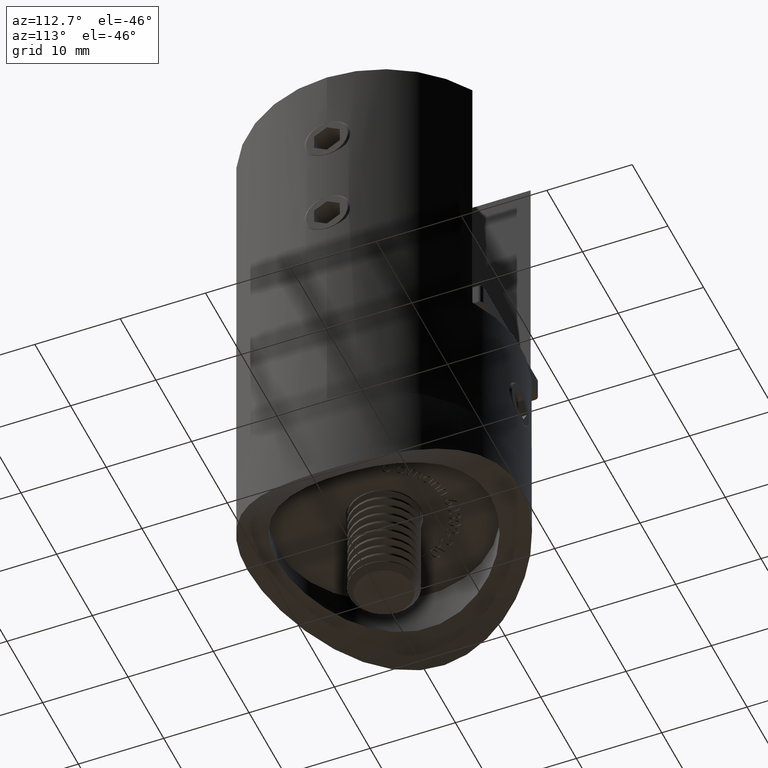
[diagram: clean part render]
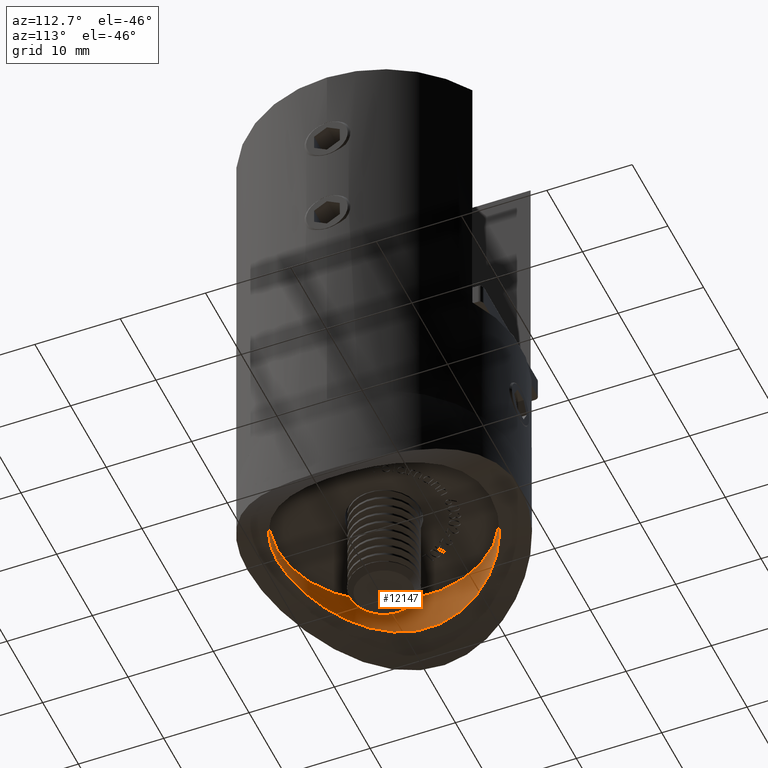
[diagram: same view with one face highlighted and labeled with its STEP entity id]
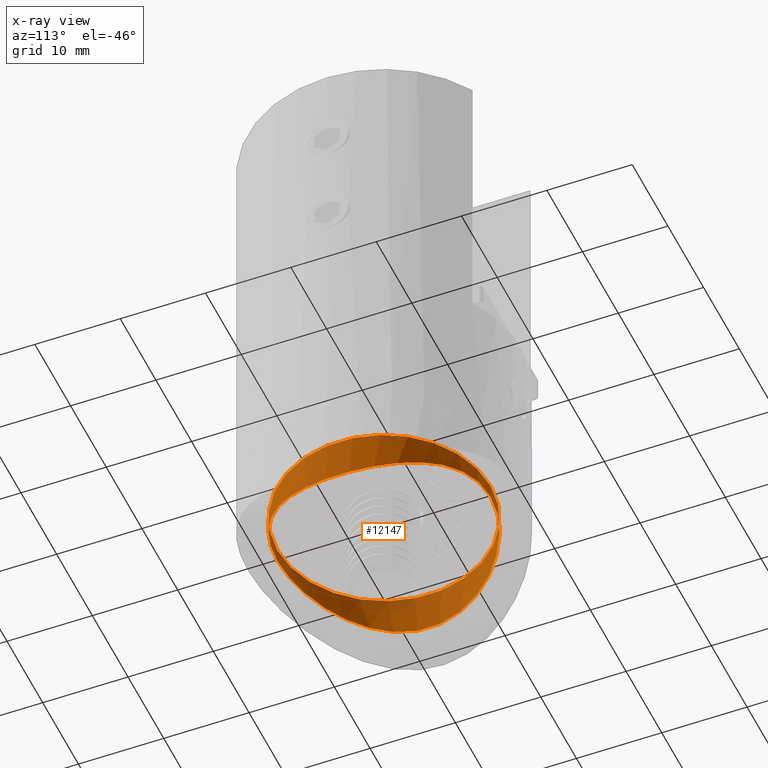
[diagram: x-ray of the same camera — body ghosted, the highlighted face saturated]
A machine part, auxiliary view. The second image highlights one B-rep face of the part: STEP entity #12147.
The next image is the same camera in x-ray: the body ghosted, the highlighted face saturated — about 6% of this face is hidden behind the body in this view.
In plain terms, the highlighted cylindrical surface (bore or boss wall) has radius 12.5 mm, axis along (0, -0, -1).
Its self-contained STEP definition (entity closure, byte-faithful):
#551 = CARTESIAN_POINT ( 'NONE',  ( 11.22171516179564854, -2.762517631140664509, 5.567231885764328148 ) ) ;
#626 = CARTESIAN_POINT ( 'NONE',  ( 0.8416139926660898274, 3.469446951953590917E-15, -12.50000000000000711 ) ) ;
#698 = CARTESIAN_POINT ( 'NONE',  ( 11.67831068887509183, -3.010663022005199974, -4.475638660923369372 ) ) ;
#758 = CARTESIAN_POINT ( 'NONE',  ( 4.109752741455194425, -0.3489297180019296785, 11.81226899662650176 ) ) ;
#822 = CARTESIAN_POINT ( 'NONE',  ( 1.693364542386448068, -0.04548548441427882616, 12.41272702035197284 ) ) ;
#890 = CARTESIAN_POINT ( 'NONE',  ( -12.40093975770249202, -3.427031647108957468, -1.625193573246781709 ) ) ;
#2133 = CARTESIAN_POINT ( 'NONE',  ( 11.83531592272858290, -3.098469632034195786, 4.042869024516788201 ) ) ;
#2199 = CARTESIAN_POINT ( 'NONE',  ( -1.630651670391556118, -0.05147306847736196622, 12.40031129654895992 ) ) ;
#2269 = CARTESIAN_POINT ( 'NONE',  ( 9.923142205795825177, -2.131111030546360308, 7.612074174934297055 ) ) ;
#2333 = CARTESIAN_POINT ( 'NONE',  ( 5.594287980704874208, -0.6442781208208000487, -11.20816533570559592 ) ) ;
#2399 = CARTESIAN_POINT ( 'NONE',  ( 7.643601615584866948, -1.239174722017980956, -9.898850495652817827 ) ) ;
#2464 = CARTESIAN_POINT ( 'NONE',  ( -10.16369364889731308, -2.241477199381396446, -7.287758421890135452 ) ) ;
#2594 = CARTESIAN_POINT ( 'NONE',  ( -5.226925829154971836, -0.5693079560569049846, -11.36202694756623721 ) ) ;
#2662 = CARTESIAN_POINT ( 'NONE',  ( -2.094311208364756371, -0.08749313957578185030, -12.33032299215525818 ) ) ;
#3522 = VERTEX_POINT ( 'NONE', #15229 ) ;
#3729 = CARTESIAN_POINT ( 'NONE',  ( 8.296859981971229203, -1.461839374236833189, 9.383618653070680438 ) ) ;
#3795 = CARTESIAN_POINT ( 'NONE',  ( -6.290458467577763280, -0.8231097910722736666, 10.83203505537224665 ) ) ;
#3868 = CARTESIAN_POINT ( 'NONE',  ( -0.3758445865019243159, 0.0006470260009834786878, 12.50125005891698926 ) ) ;
#3934 = CARTESIAN_POINT ( 'NONE',  ( 9.412192866964707250, -1.907903693207506635, 8.235475087461974653 ) ) ;
#3964 = CARTESIAN_POINT ( 'NONE',  ( 0.000000000000000000, 3.469446951953614189E-15, -12.50000000000000000 ) ) ;
#4001 = CARTESIAN_POINT ( 'NONE',  ( 3.280682860040506466, -0.2205064101225591155, -12.06894086756878792 ) ) ;
#4192 = CARTESIAN_POINT ( 'NONE',  ( -0.4208069963330455243, 3.476223215531643070E-15, -12.50000000000000355 ) ) ;
#4812 = ORIENTED_EDGE ( 'NONE', *, *, #10471, .F. ) ;
#5228 = CARTESIAN_POINT ( 'NONE',  ( 9.394847521644635435, -1.900573235167552610, -8.255202184159772472 ) ) ;
#5301 = CARTESIAN_POINT ( 'NONE',  ( 0.8701867918572792071, -0.001390958110063332878, 12.49731265922301660 ) ) ;
#5368 = CARTESIAN_POINT ( 'NONE',  ( -9.909193422454757538, -2.120910015980589147, 7.662299098335453529 ) ) ;
#5439 = CARTESIAN_POINT ( 'NONE',  ( 9.125846458580159748, -1.788567383216229878, -8.551539796307121577 ) ) ;
#5500 = CARTESIAN_POINT ( 'NONE',  ( 10.14872829841706015, -2.234525669153278660, -7.308644647692618790 ) ) ;
#5518 = EDGE_LOOP ( 'NONE', ( #4812 ) ) ;
#5692 = CARTESIAN_POINT ( 'NONE',  ( -9.411987761562494725, -1.907810120690277333, -8.235748521031599267 ) ) ;
#5729 = VERTEX_POINT ( 'NONE', #3964 ) ;
#5762 = CARTESIAN_POINT ( 'NONE',  ( -12.07716066025249901, -3.235827473606688987, 3.330140473100307918 ) ) ;
#6797 = CARTESIAN_POINT ( 'NONE',  ( -2.042669042519714040, -0.08308288046927303494, 12.33891662597603656 ) ) ;
#6864 = CARTESIAN_POINT ( 'NONE',  ( 11.20659804588976982, -2.754610452288815292, -5.596363829670498724 ) ) ;
#6935 = CARTESIAN_POINT ( 'NONE',  ( -10.79939258952036774, -2.548087003692995900, 6.307741837057448286 ) ) ;
#7009 = CARTESIAN_POINT ( 'NONE',  ( 12.49774924526884412, -3.485325542013122391, -0.8654298213824856978 ) ) ;
#7065 = AXIS2_PLACEMENT_3D ( 'NONE', #16943, #12257, #7655 ) ;
#7079 = CARTESIAN_POINT ( 'NONE',  ( 4.463086516404185744, -0.4128668850851535677, -11.68324080886737981 ) ) ;
#7207 = CARTESIAN_POINT ( 'NONE',  ( -0.8415633137906058936, -0.01104361446218677344, -12.47870299761530077 ) ) ;
#7274 = CARTESIAN_POINT ( 'NONE',  ( -6.316747293375139627, -0.8377765374019664479, -10.79430669075418692 ) ) ;
#7338 = CARTESIAN_POINT ( 'NONE',  ( -12.47702995727797948, -3.472750038800189731, 0.8636410543319921196 ) ) ;
#7404 = CARTESIAN_POINT ( 'NONE',  ( -11.20397708090773037, -2.755140858187857589, -5.557493264728312177 ) ) ;
#7655 = DIRECTION ( 'NONE',  ( 0.000000000000000000, 0.000000000000000000, -1.000000000000000000 ) ) ;
#7944 = CYLINDRICAL_SURFACE ( 'NONE', #15012, 12.50000000000000000 ) ;
#8317 = ORIENTED_EDGE ( 'NONE', *, *, #16419, .T. ) ;
#8375 = CARTESIAN_POINT ( 'NONE',  ( 12.06284593198464350, -3.228001797514791882, -3.302785208884873924 ) ) ;
#8441 = CARTESIAN_POINT ( 'NONE',  ( 3.322960808794985788, -0.2263935488872669266, 12.05726743121238265 ) ) ;
#8515 = CARTESIAN_POINT ( 'NONE',  ( 12.33814508041329283, -3.389424442378365487, 2.047052564725856172 ) ) ;
#8578 = CARTESIAN_POINT ( 'NONE',  ( 7.317373504727922473, -1.132564767861668154, -10.14252889460935947 ) ) ;
#8642 = CARTESIAN_POINT ( 'NONE',  ( 12.17629244726874838, -3.294084202614605772, 2.856247619983864006 ) ) ;
#8709 = CARTESIAN_POINT ( 'NONE',  ( -4.099037510848110522, -0.3380375637845913217, -11.83695617156265101 ) ) ;
#8774 = CARTESIAN_POINT ( 'NONE',  ( -11.36069409278679032, -2.838285258480942375, 5.229597903835168538 ) ) ;
#8971 = CARTESIAN_POINT ( 'NONE',  ( -3.316877259944524869, -0.2148307166161520787, -12.08057711187186278 ) ) ;
#9937 = CARTESIAN_POINT ( 'NONE',  ( 11.69463221032095568, -3.019683490822727912, 4.433206286189491863 ) ) ;
#10013 = CARTESIAN_POINT ( 'NONE',  ( 2.916893301379980930, -0.1732949648051450575, 12.16203323285878213 ) ) ;
#10081 = CARTESIAN_POINT ( 'NONE',  ( 1.666427008392846520, -0.04383638825327753480, -12.41589289394554996 ) ) ;
#10106 = DIRECTION ( 'NONE',  ( -0.000000000000000000, -1.000000000000000000, -0.000000000000000000 ) ) ;
#10147 = CARTESIAN_POINT ( 'NONE',  ( 12.41328738822395827, -3.433597884895211116, -1.685670540479240698 ) ) ;
#10218 = CARTESIAN_POINT ( 'NONE',  ( 12.50105946675680713, -3.487328007451254042, 0.3829992845280518754 ) ) ;
#10284 = CARTESIAN_POINT ( 'NONE',  ( -10.81973109692051871, -2.558276606120126750, -6.272818569617435003 ) ) ;
#10308 = CARTESIAN_POINT ( 'NONE',  ( 0.000000000000000000, 1.699999999999999956, 0.000000000000000000 ) ) ;
#10471 = EDGE_CURVE ( 'NONE', #3522, #3522, #16156, .T. ) ;
#10488 = CARTESIAN_POINT ( 'NONE',  ( -11.85457163419845017, -3.106690732645334130, -4.048891219634814576 ) ) ;
#11545 = CARTESIAN_POINT ( 'NONE',  ( 9.905737200678290222, -2.123277097359831167, -7.634650847773378324 ) ) ;
#11616 = CARTESIAN_POINT ( 'NONE',  ( 10.82438516625331992, -2.555926955366531139, -6.303536818163585131 ) ) ;
#11692 = CARTESIAN_POINT ( 'NONE',  ( 8.560607551957421180, -1.566139820617232781, -9.117340885081242519 ) ) ;
#11761 = CARTESIAN_POINT ( 'NONE',  ( -7.632636067880911312, -1.227161144243663626, 9.932055065716143716 ) ) ;
#11830 = CARTESIAN_POINT ( 'NONE',  ( -0.7937935283653483332, -0.009413491511894042305, 12.48185230467802320 ) ) ;
#11894 = CARTESIAN_POINT ( 'NONE',  ( -11.38086847299331694, -2.849046002857148707, -5.185983993912951284 ) ) ;
#11961 = CARTESIAN_POINT ( 'NONE',  ( -6.665751520387543039, -0.9355089565335658053, -10.58210857748916034 ) ) ;
#12017 = CARTESIAN_POINT ( 'NONE',  ( -7.670003217709719934, -1.239676964406403403, -9.903237437807737464 ) ) ;
#12087 = CARTESIAN_POINT ( 'NONE',  ( -12.39229586063314947, -3.421856189825289274, 1.689128689021146101 ) ) ;
#12147 = ADVANCED_FACE ( 'NONE', ( #16820, #12375 ), #7944, .F. ) ;
#12155 = CARTESIAN_POINT ( 'NONE',  ( -12.50113647660907823, -3.487374592744736823, -0.3784457863118969589 ) ) ;
#12257 = DIRECTION ( 'NONE',  ( 0.000000000000000000, -1.000000000000000000, 0.000000000000000000 ) ) ;
#12375 = FACE_OUTER_BOUND ( 'NONE', #5518, .T. ) ;
#13139 = CARTESIAN_POINT ( 'NONE',  ( 10.16551749499001644, -2.242316943920116490, 7.285275361540620942 ) ) ;
#13215 = CARTESIAN_POINT ( 'NONE',  ( -5.575696691962559015, -0.6395565428234447625, 11.21809945721803992 ) ) ;
#13283 = CARTESIAN_POINT ( 'NONE',  ( 9.143358402556374998, -1.795727440652015616, 8.532821530365831464 ) ) ;
#13351 = CARTESIAN_POINT ( 'NONE',  ( 11.81847010116291941, -3.088992777373849030, -4.091992984200407690 ) ) ;
#13423 = CARTESIAN_POINT ( 'NONE',  ( 8.264370655871712046, -1.455711329976477675, -9.386802674788901513 ) ) ;
#13492 = CARTESIAN_POINT ( 'NONE',  ( -5.595272729540670120, -0.6541709611997966745, -11.18531521167290421 ) ) ;
#13558 = CARTESIAN_POINT ( 'NONE',  ( -12.33897836552499960, -3.389917376965435380, -2.042544866178391150 ) ) ;
#13623 = CARTESIAN_POINT ( 'NONE',  ( -1.676951933329628108, -0.05466276626705903613, -12.39411511674446054 ) ) ;
#13650 = DIRECTION ( 'NONE',  ( 0.000000000000000000, 0.000000000000000000, -1.000000000000000000 ) ) ;
#13760 = CARTESIAN_POINT ( 'NONE',  ( -11.83278988928865871, -3.094459033048017726, 4.109907718995613912 ) ) ;
#14741 = CARTESIAN_POINT ( 'NONE',  ( 5.616393516081360282, -0.6497255878473398027, 11.19673421751229547 ) ) ;
#14808 = CARTESIAN_POINT ( 'NONE',  ( -9.399704287991005103, -1.896005990789425777, 8.278850895681342692 ) ) ;
#14874 = CARTESIAN_POINT ( 'NONE',  ( -8.264077568507033789, -1.449786080185160531, 9.412695405477592203 ) ) ;
#14946 = CARTESIAN_POINT ( 'NONE',  ( -3.260479979501046621, -0.2071982398510623935, 12.09564845651103049 ) ) ;
#15012 = AXIS2_PLACEMENT_3D ( 'NONE', #10308, #10106, #13650 ) ;
#15229 = CARTESIAN_POINT ( 'NONE',  ( 0.000000000000000000, 1.699999999999999956, -12.50000000000000000 ) ) ;
#16156 = CIRCLE ( 'NONE', #7065, 12.50000000000000000 ) ;
#16246 = CARTESIAN_POINT ( 'NONE',  ( 10.83888041841365180, -2.563234087021752927, 6.278582914400732129 ) ) ;
#16313 = CARTESIAN_POINT ( 'NONE',  ( -4.048937038016205747, -0.3290962804506795125, 11.85496764630669020 ) ) ;
#16385 = CARTESIAN_POINT ( 'NONE',  ( -10.58722758480828396, -2.442956972001324001, 6.657615752389726360 ) ) ;
#16419 = EDGE_CURVE ( 'NONE', #5729, #5729, #17382, .T. ) ;
#16450 = CARTESIAN_POINT ( 'NONE',  ( 4.073928212782695901, -0.3427185001470134940, -11.82477579534296197 ) ) ;
#16518 = CARTESIAN_POINT ( 'NONE',  ( 12.39939560149940156, -3.426106614345843404, 1.636956017459154866 ) ) ;
#16647 = CARTESIAN_POINT ( 'NONE',  ( -8.287351939170422455, -1.458261868603524691, -9.392409702269290506 ) ) ;
#16709 = CARTESIAN_POINT ( 'NONE',  ( -12.09488317661415557, -3.246125444680883376, -3.263940484297829681 ) ) ;
#16770 = CARTESIAN_POINT ( 'NONE',  ( -9.139284782924383066, -1.794035604485923141, -8.537292556855796022 ) ) ;
#16820 = FACE_OUTER_BOUND ( 'NONE', #18165, .T. ) ;
#16838 = CARTESIAN_POINT ( 'NONE',  ( -12.32893162694468892, -3.383935725384860760, 2.102821018098293582 ) ) ;
#16943 = CARTESIAN_POINT ( 'NONE',  ( 0.000000000000000000, 1.699999999999999956, 0.000000000000000000 ) ) ;
#17382 = B_SPLINE_CURVE_WITH_KNOTS ( 'NONE', 3,
 ( #19508, #626, #10081, #19441, #4001, #16450, #7079, #2333, #18017, #8578, #2399, #13423, #11692, #5439, #5228, #11545, #5500, #11616, #6864, #698, #13351, #8375, #18079, #10147, #7009, #10218, #17884, #16518, #8515, #8642, #19580, #2133, #9937, #551, #16246, #13139, #2269, #3934, #13283, #3729, #17808, #19376, #14741, #19645, #758, #8441, #10013, #822, #5301, #3868, #11830, #2199, #6797, #14946, #16313, #13215, #3795, #11761, #14874, #14808, #5368, #16385, #6935, #17949, #8774, #13760, #5762, #16838, #12087, #7338, #18341, #12155, #19711, #890, #13558, #16709, #10488, #11894, #7404, #10284, #18406, #2464, #19783, #5692, #16770, #16647, #12017, #11961, #7274, #13492, #2594, #8709, #8971, #2662, #13623, #7207, #4192, #19975 ),
 .UNSPECIFIED., .T., .F.,
 ( 4, 2, 2, 2, 2, 2, 2, 2, 2, 2, 2, 2, 2, 2, 2, 2, 2, 2, 2, 2, 2, 2, 2, 2, 2, 2, 2, 2, 2, 2, 2, 2, 2, 2, 2, 2, 2, 2, 2, 2, 2, 2, 2, 2, 2, 2, 2, 2, 4 ),
 ( 0.000000000000000000, 0.002486133216992814955, 0.003729199825489223300, 0.004972266433985629910, 0.007458399650978444866, 0.008701466259474852777, 0.009944532867971263290, 0.01118759947646767207, 0.01243066608496408258, 0.01491679930195690881, 0.01615986591045331933, 0.01740293251894972984, 0.01988906573594255434, 0.02113213234443896485, 0.02237519895293538230, 0.02361826556143179281, 0.02486133216992819986, 0.02734746538692102782, 0.02859053199541743834, 0.02983359860391384538, 0.03231973182090667335, 0.03480586503789949437, 0.03604893164639590836, 0.03729199825489231540, 0.03977813147188515031, 0.04102119808038156429, 0.04226426468887796439, 0.04475039790587079930, 0.04723653112286362032, 0.04972266433985644135, 0.05220879755684926932, 0.05345186416534567636, 0.05469493077384207647, 0.05718106399083489749, 0.05842413059933130454, 0.05966719720782771158, 0.06091026381632412556, 0.06215333042482052567, 0.06463946364181334669, 0.06588253025030975374, 0.06712559685880616078, 0.06836866346730258170, 0.06961173007579897487, 0.07209786329279180284, 0.07334092990128820988, 0.07458399650978461692, 0.07707012972677744489, 0.07831319633527385193, 0.07955626294377025898 ),
 .UNSPECIFIED. ) ;
#17808 = CARTESIAN_POINT ( 'NONE',  ( 7.679687139352869174, -1.242732285119620084, 9.896326891067060316 ) ) ;
#17884 = CARTESIAN_POINT ( 'NONE',  ( 12.48103956478301058, -3.475174251646905965, 0.8051631312347367064 ) ) ;
#17949 = CARTESIAN_POINT ( 'NONE',  ( -11.18556598586050121, -2.745499562508696201, 5.594425883101220798 ) ) ;
#18017 = CARTESIAN_POINT ( 'NONE',  ( 6.306957372526911243, -0.8274806807961548882, -10.82273894371698297 ) ) ;
#18079 = CARTESIAN_POINT ( 'NONE',  ( 12.16623829432023385, -3.288210147253527005, -2.898783021241129632 ) ) ;
#18165 = EDGE_LOOP ( 'NONE', ( #8317 ) ) ;
#18341 = CARTESIAN_POINT ( 'NONE',  ( -12.49876076068150432, -3.485937442637155659, 0.4501265013655241232 ) ) ;
#18406 = CARTESIAN_POINT ( 'NONE',  ( -10.61159664689885851, -2.454884040471554840, -6.618618285412083857 ) ) ;
#19376 = CARTESIAN_POINT ( 'NONE',  ( 6.328959426137796385, -0.8333797195681819092, 10.81014121441067566 ) ) ;
#19441 = CARTESIAN_POINT ( 'NONE',  ( 2.880084786186518642, -0.1689030195233190701, -12.17068015586779595 ) ) ;
#19508 = CARTESIAN_POINT ( 'NONE',  ( -4.878909776184769953E-16, 3.473964461005626211E-15, -12.50000000000000533 ) ) ;
#19580 = CARTESIAN_POINT ( 'NONE',  ( 12.07568711241505888, -3.235425785179558034, 3.255345404598880776 ) ) ;
#19645 = CARTESIAN_POINT ( 'NONE',  ( 4.493358900822074453, -0.4186221600621639061, 11.67154270457319321 ) ) ;
#19711 = CARTESIAN_POINT ( 'NONE',  ( -12.48178325670625632, -3.475624290883715162, -0.7935034702485310731 ) ) ;
#19783 = CARTESIAN_POINT ( 'NONE',  ( -9.923924471011339676, -2.131456738813707119, -7.611096531981353053 ) ) ;
#19975 = CARTESIAN_POINT ( 'NONE',  ( -4.878909776184769953E-16, 3.473964461005626211E-15, -12.50000000000000533 ) ) ;